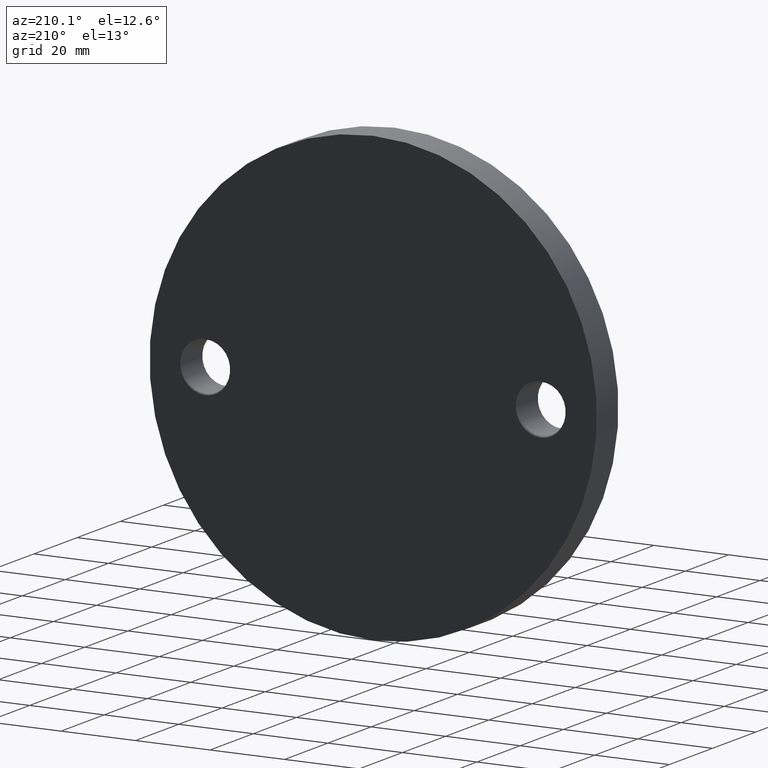
[diagram: clean part render]
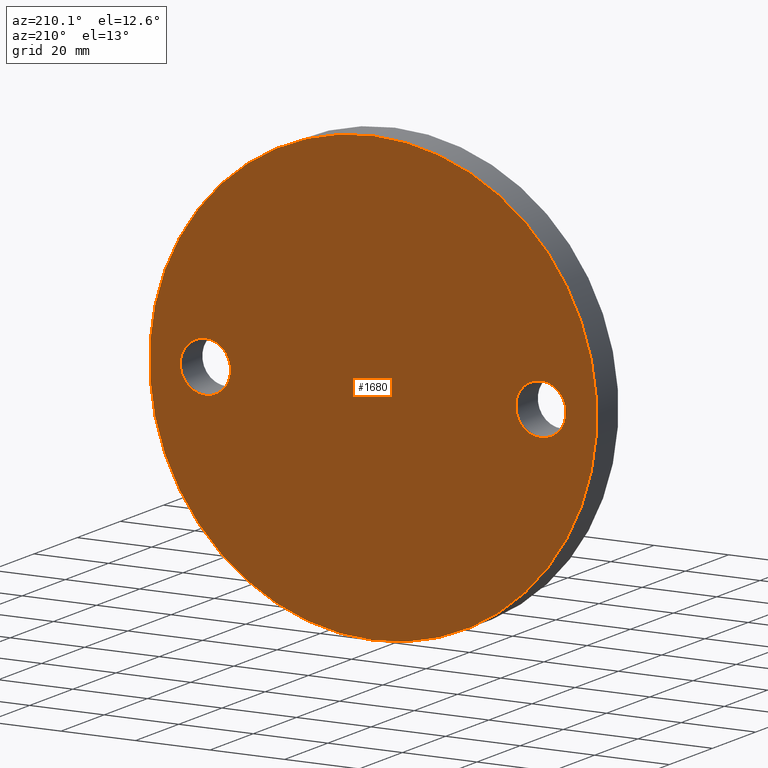
[diagram: same view with one face highlighted and labeled with its STEP entity id]
A machine part, auxiliary view. The second image highlights one B-rep face of the part: STEP entity #1680.
In plain terms, the highlighted planar face has unit normal (0, 1, 0).
Its self-contained STEP definition (entity closure, byte-faithful):
#364 = CARTESIAN_POINT ( 'NONE',  ( 0.000000000000000000, 10.00000000000000000, 0.000000000000000000 ) ) ;
#716 = DIRECTION ( 'NONE',  ( -0.000000000000000000, -1.000000000000000000, -0.000000000000000000 ) ) ;
#726 = DIRECTION ( 'NONE',  ( 0.000000000000000000, 0.000000000000000000, 1.000000000000000000 ) ) ;
#993 = AXIS2_PLACEMENT_3D ( 'NONE', #6538, #13302, #8895 ) ;
#1084 = EDGE_CURVE ( 'NONE', #2568, #14162, #12773, .T. ) ;
#1467 = DIRECTION ( 'NONE',  ( 0.000000000000000000, 1.000000000000000000, 0.000000000000000000 ) ) ;
#1479 = EDGE_CURVE ( 'NONE', #6703, #7151, #12245, .T. ) ;
#1558 = DIRECTION ( 'NONE',  ( 0.000000000000000000, 0.000000000000000000, 1.000000000000000000 ) ) ;
#1680 = ADVANCED_FACE ( 'NONE', ( #12961, #12265, #11729 ), #9751, .T. ) ;
#1697 = CARTESIAN_POINT ( 'NONE',  ( 0.000000000000000000, 10.00000000000000000, 0.000000000000000000 ) ) ;
#1887 = CARTESIAN_POINT ( 'NONE',  ( 45.00000000000000000, 10.00000000000000000, -6.750000000000004441 ) ) ;
#1992 = ORIENTED_EDGE ( 'NONE', *, *, #7921, .T. ) ;
#2090 = CARTESIAN_POINT ( 'NONE',  ( 45.00000000000000000, 10.00000000000000000, 6.749999999999981348 ) ) ;
#2568 = VERTEX_POINT ( 'NONE', #4525 ) ;
#2644 = ORIENTED_EDGE ( 'NONE', *, *, #6691, .T. ) ;
#3173 = ORIENTED_EDGE ( 'NONE', *, *, #1479, .T. ) ;
#3283 = EDGE_LOOP ( 'NONE', ( #2644, #10887 ) ) ;
#3689 = VERTEX_POINT ( 'NONE', #2090 ) ;
#3746 = CIRCLE ( 'NONE', #14068, 6.749999999999992895 ) ;
#4123 = CIRCLE ( 'NONE', #993, 6.749999999999992895 ) ;
#4525 = CARTESIAN_POINT ( 'NONE',  ( -45.00000000000000000, 10.00000000000000000, -6.749999999999992895 ) ) ;
#4558 = ORIENTED_EDGE ( 'NONE', *, *, #9267, .T. ) ;
#4769 = AXIS2_PLACEMENT_3D ( 'NONE', #10914, #12047, #5306 ) ;
#4889 = VERTEX_POINT ( 'NONE', #1887 ) ;
#5033 = CARTESIAN_POINT ( 'NONE',  ( 45.00000000000000000, 10.00000000000000000, -1.102182119232617911E-14 ) ) ;
#5306 = DIRECTION ( 'NONE',  ( 0.000000000000000000, -0.000000000000000000, 1.000000000000000000 ) ) ;
#5948 = CIRCLE ( 'NONE', #9599, 6.749999999999992895 ) ;
#6538 = CARTESIAN_POINT ( 'NONE',  ( 45.00000000000000000, 10.00000000000000000, -1.102182119232617911E-14 ) ) ;
#6691 = EDGE_CURVE ( 'NONE', #14162, #2568, #5948, .T. ) ;
#6703 = VERTEX_POINT ( 'NONE', #11752 ) ;
#6783 = AXIS2_PLACEMENT_3D ( 'NONE', #11671, #13900, #9350 ) ;
#6922 = EDGE_LOOP ( 'NONE', ( #4558, #1992 ) ) ;
#7103 = CARTESIAN_POINT ( 'NONE',  ( 0.000000000000000000, 10.00000000000000000, -60.00000000000000000 ) ) ;
#7151 = VERTEX_POINT ( 'NONE', #7103 ) ;
#7241 = AXIS2_PLACEMENT_3D ( 'NONE', #364, #1467, #8302 ) ;
#7921 = EDGE_CURVE ( 'NONE', #4889, #3689, #4123, .T. ) ;
#8302 = DIRECTION ( 'NONE',  ( 0.000000000000000000, 0.000000000000000000, 1.000000000000000000 ) ) ;
#8557 = DIRECTION ( 'NONE',  ( -0.000000000000000000, -1.000000000000000000, -0.000000000000000000 ) ) ;
#8692 = EDGE_CURVE ( 'NONE', #7151, #6703, #13675, .T. ) ;
#8895 = DIRECTION ( 'NONE',  ( 0.000000000000000000, 0.000000000000000000, 1.000000000000000000 ) ) ;
#9267 = EDGE_CURVE ( 'NONE', #3689, #4889, #3746, .T. ) ;
#9350 = DIRECTION ( 'NONE',  ( 0.000000000000000000, 0.000000000000000000, 1.000000000000000000 ) ) ;
#9450 = CARTESIAN_POINT ( 'NONE',  ( -45.00000000000000000, 10.00000000000000000, 6.749999999999992895 ) ) ;
#9558 = DIRECTION ( 'NONE',  ( 0.000000000000000000, 0.000000000000000000, 1.000000000000000000 ) ) ;
#9599 = AXIS2_PLACEMENT_3D ( 'NONE', #10863, #8557, #726 ) ;
#9751 = PLANE ( 'NONE',  #4769 ) ;
#10569 = ORIENTED_EDGE ( 'NONE', *, *, #8692, .T. ) ;
#10863 = CARTESIAN_POINT ( 'NONE',  ( -45.00000000000000000, 10.00000000000000000, 0.000000000000000000 ) ) ;
#10887 = ORIENTED_EDGE ( 'NONE', *, *, #1084, .T. ) ;
#10914 = CARTESIAN_POINT ( 'NONE',  ( 0.000000000000000000, 10.00000000000000000, 0.000000000000000000 ) ) ;
#11412 = AXIS2_PLACEMENT_3D ( 'NONE', #1697, #14121, #1558 ) ;
#11671 = CARTESIAN_POINT ( 'NONE',  ( -45.00000000000000000, 10.00000000000000000, 0.000000000000000000 ) ) ;
#11729 = FACE_OUTER_BOUND ( 'NONE', #13495, .T. ) ;
#11752 = CARTESIAN_POINT ( 'NONE',  ( 7.347880794884118356E-15, 10.00000000000000000, 60.00000000000000000 ) ) ;
#12047 = DIRECTION ( 'NONE',  ( 0.000000000000000000, 1.000000000000000000, 0.000000000000000000 ) ) ;
#12245 = CIRCLE ( 'NONE', #7241, 60.00000000000000000 ) ;
#12265 = FACE_BOUND ( 'NONE', #3283, .T. ) ;
#12773 = CIRCLE ( 'NONE', #6783, 6.749999999999992895 ) ;
#12961 = FACE_BOUND ( 'NONE', #6922, .T. ) ;
#13302 = DIRECTION ( 'NONE',  ( -0.000000000000000000, -1.000000000000000000, -0.000000000000000000 ) ) ;
#13495 = EDGE_LOOP ( 'NONE', ( #10569, #3173 ) ) ;
#13675 = CIRCLE ( 'NONE', #11412, 60.00000000000000000 ) ;
#13900 = DIRECTION ( 'NONE',  ( -0.000000000000000000, -1.000000000000000000, -0.000000000000000000 ) ) ;
#14068 = AXIS2_PLACEMENT_3D ( 'NONE', #5033, #716, #9558 ) ;
#14121 = DIRECTION ( 'NONE',  ( 0.000000000000000000, 1.000000000000000000, 0.000000000000000000 ) ) ;
#14162 = VERTEX_POINT ( 'NONE', #9450 ) ;